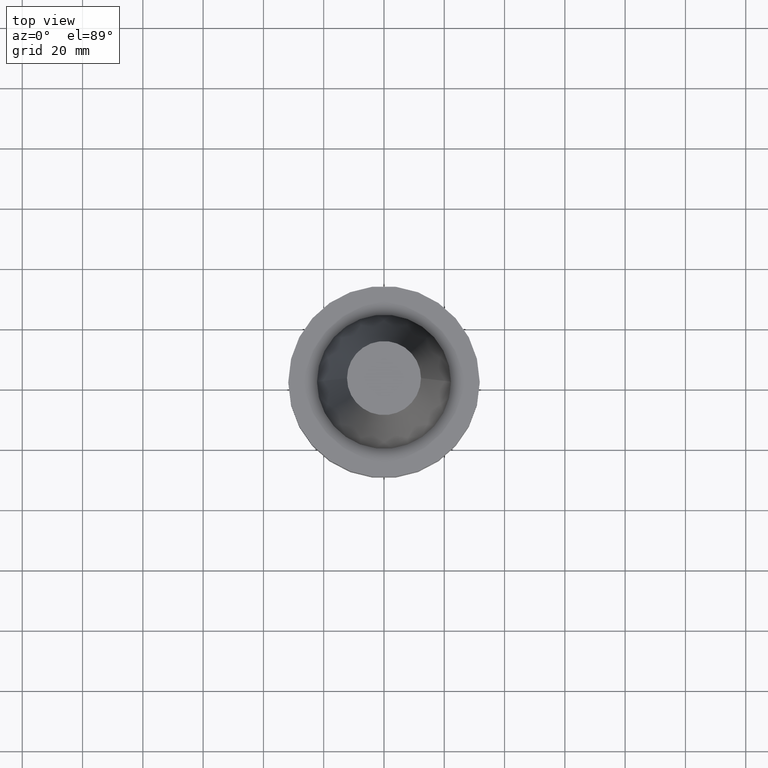
[diagram: clean part render]
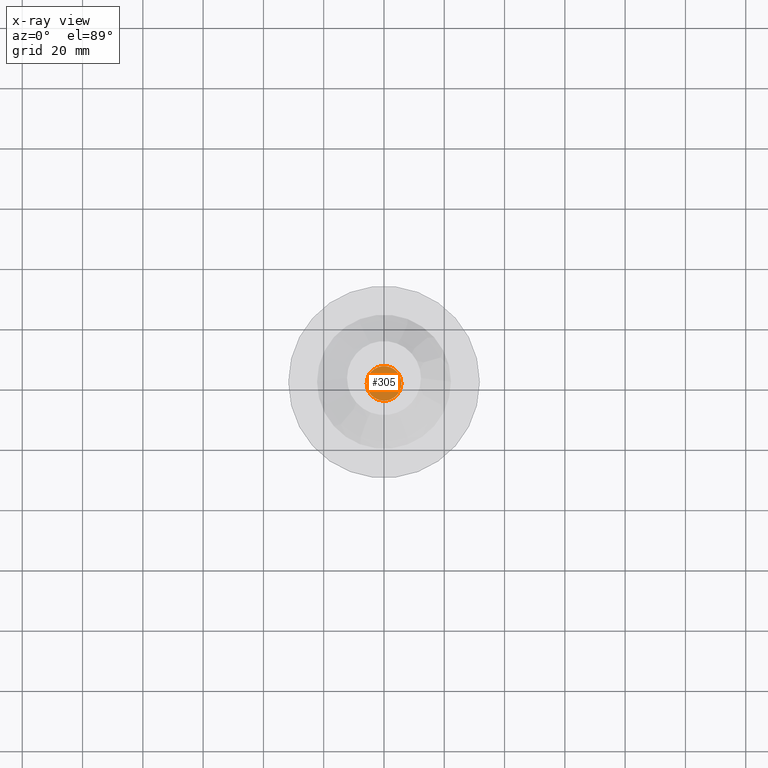
[diagram: x-ray — body ghosted, one internal face saturated and labeled with its STEP entity id]
A machine part, top view, then the same camera in x-ray: the body is ghosted and one INTERNAL B-rep face — a face not visible from any outside direction — is saturated and labeled: STEP entity #305.
In plain terms, the highlighted planar face has unit normal (0, -0, 1).
Its self-contained STEP definition (entity closure, byte-faithful):
#3 = AXIS2_PLACEMENT_3D ( 'NONE', #188, #446, #980 ) ;
#26 = CARTESIAN_POINT ( 'NONE',  ( 0.000000000000000000, 22.22499999999999787, -35.04999999999999716 ) ) ;
#47 = ORIENTED_EDGE ( 'NONE', *, *, #918, .F. ) ;
#125 = EDGE_LOOP ( 'NONE', ( #627, #47 ) ) ;
#153 = CARTESIAN_POINT ( 'NONE',  ( 0.000000000000000000, 0.000000000000000000, -35.04999999999999716 ) ) ;
#188 = CARTESIAN_POINT ( 'NONE',  ( 0.000000000000000000, 0.000000000000000000, -35.04999999999999716 ) ) ;
#214 = AXIS2_PLACEMENT_3D ( 'NONE', #26, #365, #810 ) ;
#305 = ADVANCED_FACE ( 'NONE', ( #948 ), #533, .F. ) ;
#318 = AXIS2_PLACEMENT_3D ( 'NONE', #153, #577, #786 ) ;
#365 = DIRECTION ( 'NONE',  ( 0.000000000000000000, -0.000000000000000000, 1.000000000000000000 ) ) ;
#444 = CARTESIAN_POINT ( 'NONE',  ( -5.754999999999996341, 7.047842329093012825E-16, -35.04999999999999716 ) ) ;
#446 = DIRECTION ( 'NONE',  ( -0.000000000000000000, -0.000000000000000000, 1.000000000000000000 ) ) ;
#455 = CIRCLE ( 'NONE', #318, 5.754999999999996341 ) ;
#524 = CARTESIAN_POINT ( 'NONE',  ( 5.754999999999996341, 0.000000000000000000, -35.04999999999999716 ) ) ;
#533 = PLANE ( 'NONE',  #214 ) ;
#577 = DIRECTION ( 'NONE',  ( -0.000000000000000000, -0.000000000000000000, 1.000000000000000000 ) ) ;
#627 = ORIENTED_EDGE ( 'NONE', *, *, #1083, .F. ) ;
#630 = VERTEX_POINT ( 'NONE', #524 ) ;
#669 = VERTEX_POINT ( 'NONE', #444 ) ;
#786 = DIRECTION ( 'NONE',  ( 1.000000000000000000, 0.000000000000000000, 0.000000000000000000 ) ) ;
#810 = DIRECTION ( 'NONE',  ( 1.000000000000000000, 0.000000000000000000, 0.000000000000000000 ) ) ;
#918 = EDGE_CURVE ( 'NONE', #669, #630, #455, .T. ) ;
#948 = FACE_OUTER_BOUND ( 'NONE', #125, .T. ) ;
#980 = DIRECTION ( 'NONE',  ( 1.000000000000000000, 0.000000000000000000, 0.000000000000000000 ) ) ;
#1026 = CIRCLE ( 'NONE', #3, 5.754999999999996341 ) ;
#1083 = EDGE_CURVE ( 'NONE', #630, #669, #1026, .T. ) ;